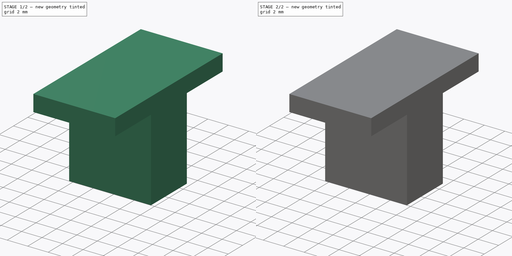
[diagram: build sequence overview — one tinted view per stage of 2, left to right]
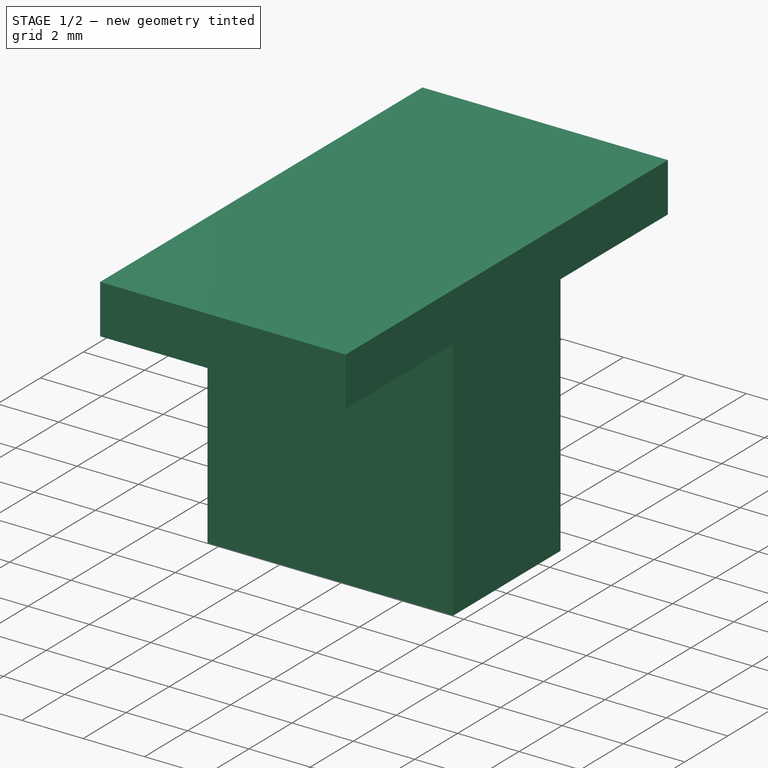
[diagram: stage 1 of 2 — iso view after this stage's code; geometry added in this stage tinted green]
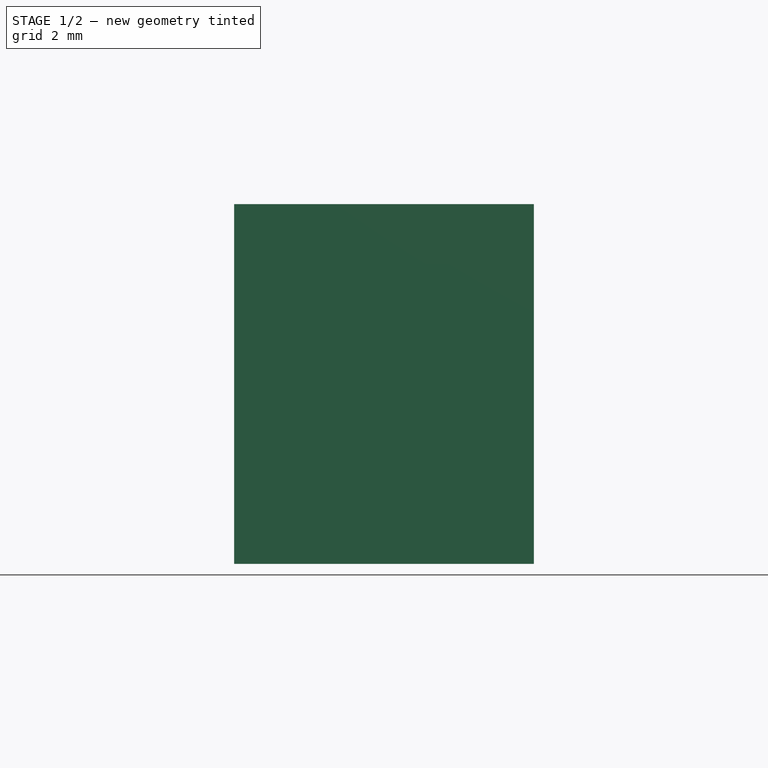
[diagram: stage 1 of 2 — front view after this stage's code; geometry added in this stage tinted green]
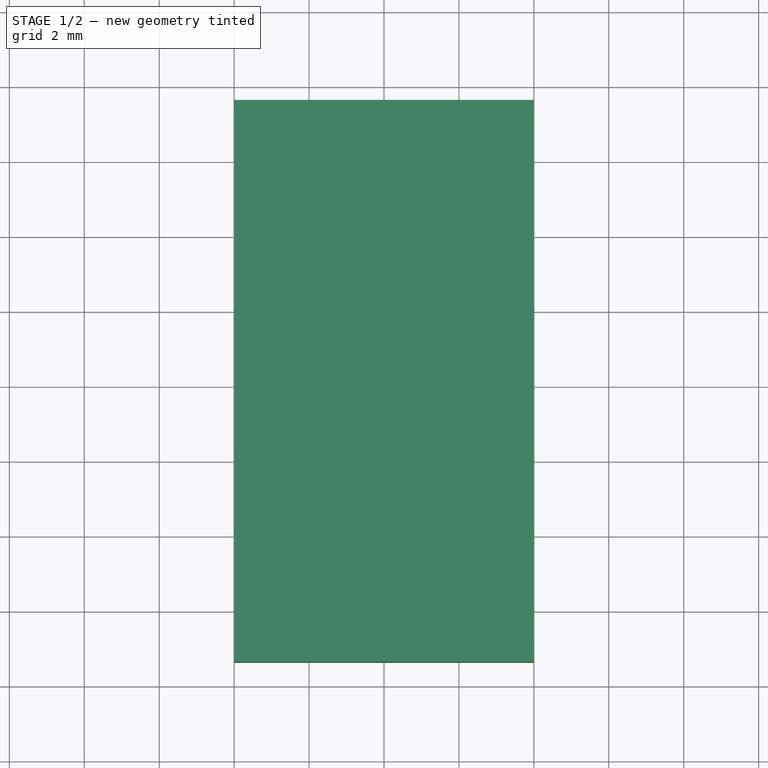
[diagram: stage 1 of 2 — top view after this stage's code; geometry added in this stage tinted green]
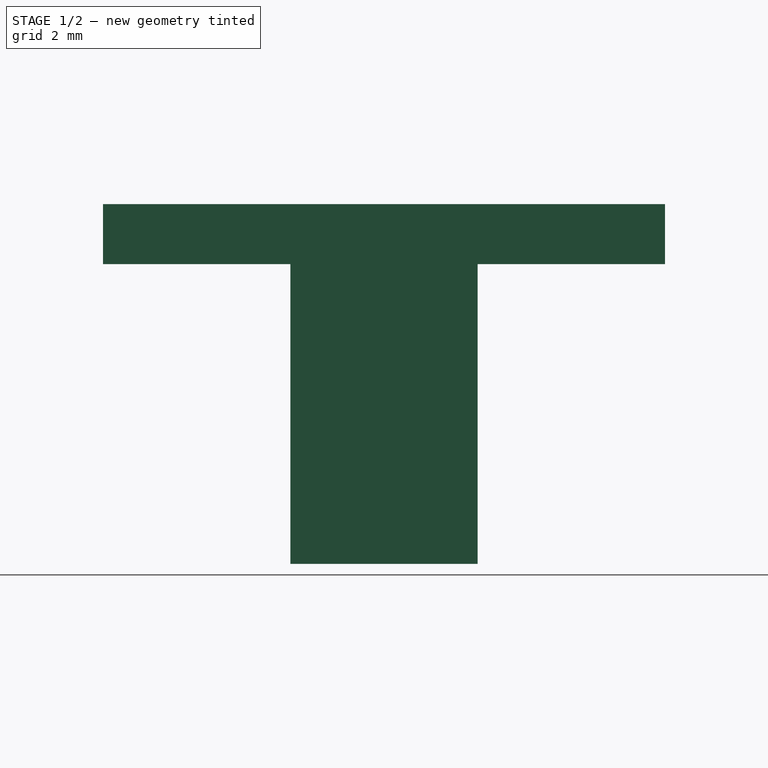
[diagram: stage 1 of 2 — right view after this stage's code; geometry added in this stage tinted green]
FCSTD DOCUMENT  (FreeCAD 0.16R6706 (Git))
Label: Prise-ISP-6
License: All rights reserved
LicenseURL: http://en.wikipedia.org/wiki/All_rights_reserved
objects: Sketcher::SketchObject×3, PartDesign::Pad×2, PartDesign::Pocket×1, Part::Fuse×1
note: 10 computed .brp shape members not serialized (recipe doc carries the construction recipe); baked Part::Feature solids carry a one-line shape summary decoded from their .brp

FEATURE [Sketcher::SketchObject] Sketch
  Placement = pos=(0,0,0) rot=(0.57735,0.57735,0.57735;2.0944rad)
  sketch-geometry (4):
    g0: LineSegment StartX=-2.5 StartY=0 StartZ=0 EndX=2.5 EndY=0 EndZ=0
    g1: LineSegment StartX=2.5 StartY=0 StartZ=0 EndX=2.5 EndY=-8 EndZ=0
    g2: LineSegment StartX=2.5 StartY=-8 StartZ=0 EndX=-2.5 EndY=-8 EndZ=0
    g3: LineSegment StartX=-2.5 StartY=-8 StartZ=0 EndX=-2.5 EndY=0 EndZ=0
  constraints (12):
    c: Coincident(g0,g1)
    c: Coincident(g1,g2)
    c: Coincident(g2,g3)
    c: Coincident(g3,g0)
    c: Horizontal(g0)
    c: Horizontal(g2)
    c: Vertical(g1)
    c: Vertical(g3)
    c: DistanceX(g2,g2) = 5
    c: DistanceY(g1,g1) = 8
    c: PointOnObject(g0,g-1)
    c: DistanceX(g0) = 2.5
FEATURE [PartDesign::Pad] Pad
  Length = 8
  Length2 = 100
  Midplane = true
  Placement = pos=(0,0,0) rot=(0.57735,0.57735,0.57735;2.0944rad)
  Sketch = -> Sketch
  Type = 0
FEATURE [Sketcher::SketchObject] Sketch002
  Placement = pos=(0,0,0) rot=(0.57735,0.57735,0.57735;2.0944rad)
  sketch-geometry (4):
    g0: LineSegment StartX=-7.5 StartY=1.6 StartZ=0 EndX=7.5 EndY=1.6 EndZ=0
    g1: LineSegment StartX=7.5 StartY=1.6 StartZ=0 EndX=7.5 EndY=0 EndZ=0
    g2: LineSegment StartX=7.5 StartY=0 StartZ=0 EndX=-7.5 EndY=0 EndZ=0
    g3: LineSegment StartX=-7.5 StartY=0 StartZ=0 EndX=-7.5 EndY=1.6 EndZ=0
  constraints (12):
    c: Coincident(g0,g1)
    c: Coincident(g1,g2)
    c: Coincident(g2,g3)
    c: Coincident(g3,g0)
    c: Horizontal(g0)
    c: Horizontal(g2)
    c: Vertical(g1)
    c: Vertical(g3)
    c: DistanceX(g0,g0) = 15
    c: DistanceY(g1,g1) = 1.6
    c: PointOnObject(g1,g-1)
    c: DistanceX(g0) = 7.5
FEATURE [PartDesign::Pad] Pad001
  Length = 8
  Length2 = 100
  Midplane = true
  Placement = pos=(0,0,0) rot=(0.57735,0.57735,0.57735;2.0944rad)
  Sketch = -> Sketch002
  Type = 0
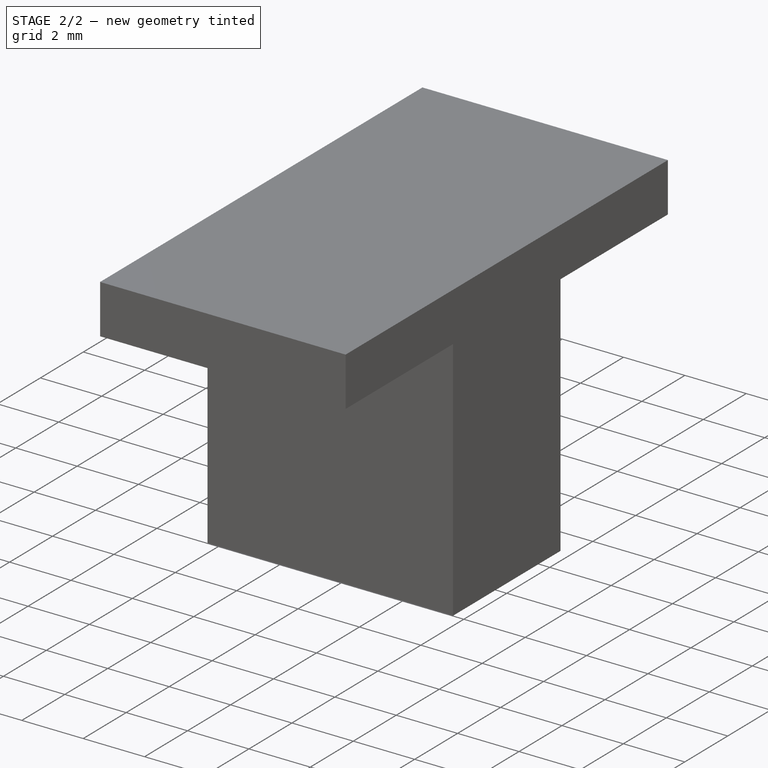
[diagram: stage 2 of 2 — iso view after this stage's code; geometry added in this stage tinted green]
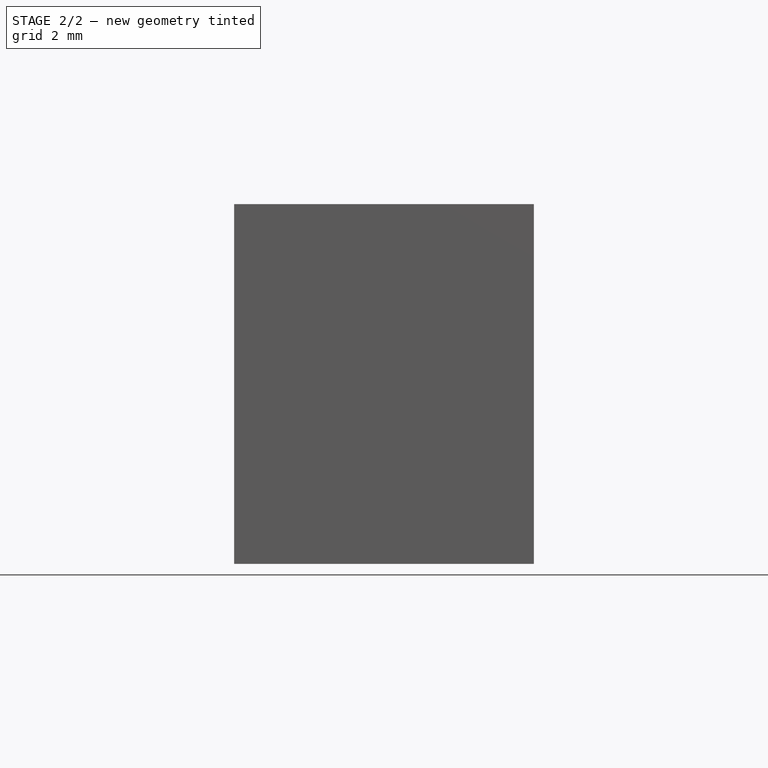
[diagram: stage 2 of 2 — front view after this stage's code; geometry added in this stage tinted green]
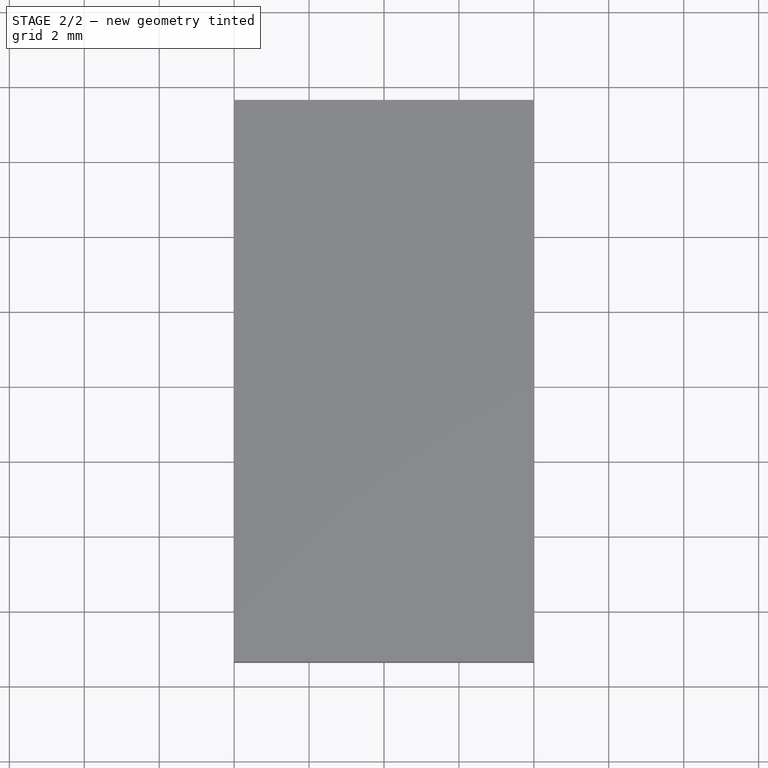
[diagram: stage 2 of 2 — top view after this stage's code; geometry added in this stage tinted green]
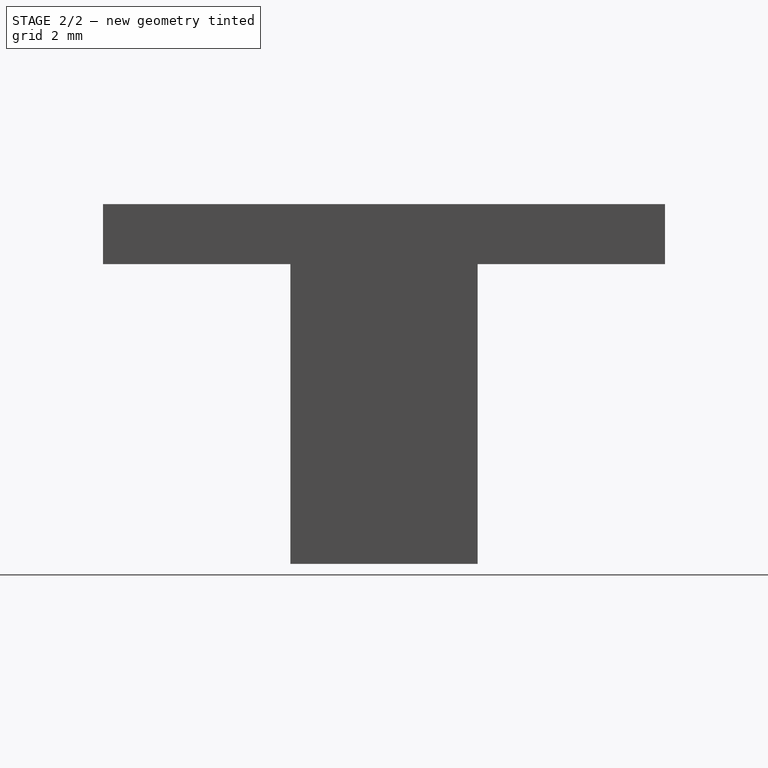
[diagram: stage 2 of 2 — right view after this stage's code; geometry added in this stage tinted green]
FEATURE [Sketcher::SketchObject] Sketch001
  Placement = pos=(0,0,-8) rot=(0.707107,0.707107,0;3.14159rad)
  Support = -> Pad [Face3]
  sketch-geometry (34):
    g0: LineSegment StartX=-1.77 StartY=3.04 StartZ=0 EndX=-0.77 EndY=3.04 EndZ=0
    g1: LineSegment StartX=-0.77 StartY=3.04 StartZ=0 EndX=-0.77 EndY=2.04 EndZ=0
    g2: LineSegment StartX=-0.77 StartY=2.04 StartZ=0 EndX=-1.77 EndY=2.04 EndZ=0
    g3: LineSegment StartX=-1.77 StartY=2.04 StartZ=0 EndX=-1.77 EndY=3.04 EndZ=0
    g4: LineSegment StartX=0.77 StartY=3.04 StartZ=0 EndX=1.77 EndY=3.04 EndZ=0
    g5: LineSegment StartX=1.77 StartY=3.04 StartZ=0 EndX=1.77 EndY=2.04 EndZ=0
    g6: LineSegment StartX=1.77 StartY=2.04 StartZ=0 EndX=0.77 EndY=2.04 EndZ=0
    g7: LineSegment StartX=0.77 StartY=2.04 StartZ=0 EndX=0.77 EndY=3.04 EndZ=0
    g8: LineSegment StartX=-1.77 StartY=0.5 StartZ=0 EndX=-0.77 EndY=0.5 EndZ=0
    g9: LineSegment StartX=-0.77 StartY=0.5 StartZ=0 EndX=-0.77 EndY=-0.5 EndZ=0
    g10: LineSegment StartX=-0.77 StartY=-0.5 StartZ=0 EndX=-1.77 EndY=-0.5 EndZ=0
    g11: LineSegment StartX=-1.77 StartY=-0.5 StartZ=0 EndX=-1.77 EndY=0.5 EndZ=0
    g12: LineSegment StartX=0.77 StartY=0.5 StartZ=0 EndX=1.77 EndY=0.5 EndZ=0
    g13: LineSegment StartX=1.77 StartY=0.5 StartZ=0 EndX=1.77 EndY=-0.5 EndZ=0
    g14: LineSegment StartX=1.77 StartY=-0.5 StartZ=0 EndX=0.77 EndY=-0.5 EndZ=0
    g15: LineSegment StartX=0.77 StartY=-0.5 StartZ=0 EndX=0.77 EndY=0.5 EndZ=0
    g16: LineSegment StartX=-1.77 StartY=-2.04 StartZ=0 EndX=-0.77 EndY=-2.04 EndZ=0
    g17: LineSegment StartX=-0.77 StartY=-2.04 StartZ=0 EndX=-0.77 EndY=-3.04 EndZ=0
    g18: LineSegment StartX=-0.77 StartY=-3.04 StartZ=0 EndX=-1.77 EndY=-3.04 EndZ=0
    g19: LineSegment StartX=-1.77 StartY=-3.04 StartZ=0 EndX=-1.77 EndY=-2.04 EndZ=0
    g20: LineSegment StartX=0.77 StartY=-2.04 StartZ=0 EndX=1.77 EndY=-2.04 EndZ=0
    g21: LineSegment StartX=1.77 StartY=-2.04 StartZ=0 EndX=1.77 EndY=-3.04 EndZ=0
    g22: LineSegment StartX=1.77 StartY=-3.04 StartZ=0 EndX=0.77 EndY=-3.04 EndZ=0
    g23: LineSegment StartX=0.77 StartY=-3.04 StartZ=0 EndX=0.77 EndY=-2.04 EndZ=0
    g24: Circle [constr] CenterX=-1.27 CenterY=2.54 CenterZ=0 NormalX=0 NormalY=0 NormalZ=1 Radius=0.707107
    g25: Circle [constr] CenterX=1.27 CenterY=2.54 CenterZ=0 NormalX=0 NormalY=0 NormalZ=1 Radius=0.707107
    g26: Circle [constr] CenterX=1.27 CenterY=0 CenterZ=0 NormalX=0 NormalY=0 NormalZ=1 Radius=0.707107
    g27: Circle [constr] CenterX=-1.27 CenterY=0 CenterZ=0 NormalX=0 NormalY=0 NormalZ=1 Radius=0.707107
    g28: Circle [constr] CenterX=-1.27 CenterY=-2.54 CenterZ=0 NormalX=0 NormalY=0 NormalZ=1 Radius=0.707107
    g29: Circle [constr] CenterX=1.27 CenterY=-2.54 CenterZ=0 NormalX=0 NormalY=0 NormalZ=1 Radius=0.707107
    g30: LineSegment [constr] StartX=-1.27 StartY=2.54 StartZ=0 EndX=1.27 EndY=2.54 EndZ=0
    g31: LineSegment [constr] StartX=1.27 StartY=2.54 StartZ=0 EndX=1.27 EndY=-2.54 EndZ=0
    g32: LineSegment [constr] StartX=1.27 StartY=-2.54 StartZ=0 EndX=-1.27 EndY=-2.54 EndZ=0
    g33: LineSegment [constr] StartX=-1.27 StartY=-2.54 StartZ=0 EndX=-1.27 EndY=2.54 EndZ=0
  constraints (98):
    c: Coincident(g0,g1)
    c: Coincident(g1,g2)
    c: Coincident(g2,g3)
    c: Coincident(g3,g0)
    c: Horizontal(g0)
    c: Horizontal(g2)
    c: Vertical(g1)
    c: Vertical(g3)
    c: Coincident(g4,g5)
    c: Coincident(g5,g6)
    c: Coincident(g6,g7)
    c: Coincident(g7,g4)
    c: Horizontal(g4)
    c: Horizontal(g6)
    c: Vertical(g5)
    c: Vertical(g7)
    c: Coincident(g8,g9)
    c: Coincident(g9,g10)
    c: Coincident(g10,g11)
    c: Coincident(g11,g8)
    c: Horizontal(g8)
    c: Horizontal(g10)
    c: Vertical(g9)
    c: Vertical(g11)
    c: Coincident(g12,g13)
    c: Coincident(g13,g14)
    c: Coincident(g14,g15)
    c: Coincident(g15,g12)
    c: Horizontal(g12)
    c: Horizontal(g14)
    c: Vertical(g13)
    c: Vertical(g15)
    c: Coincident(g16,g17)
    c: Coincident(g17,g18)
    c: Coincident(g18,g19)
    c: Coincident(g19,g16)
    c: Horizontal(g16)
    c: Horizontal(g18)
    c: Vertical(g17)
    c: Vertical(g19)
    c: Coincident(g20,g21)
    c: Coincident(g21,g22)
    c: Coincident(g22,g23)
    c: Coincident(g23,g20)
    c: Horizontal(g20)
    c: Horizontal(g22)
    c: Vertical(g21)
    c: Vertical(g23)
    c: PointOnObject(g0,g24)
    c: PointOnObject(g0,g24)
    c: PointOnObject(g1,g24)
    c: PointOnObject(g4,g25)
    c: PointOnObject(g4,g25)
    c: PointOnObject(g5,g25)
    c: PointOnObject(g8,g27)
    c: PointOnObject(g8,g27)
    c: PointOnObject(g9,g27)
    c: PointOnObject(g12,g26)
    c: PointOnObject(g12,g26)
    c: PointOnObject(g13,g26)
    c: PointOnObject(g20,g29)
    c: PointOnObject(g20,g29)
    c: PointOnObject(g21,g29)
    c: PointOnObject(g17,g28)
    c: PointOnObject(g16,g28)
    c: PointOnObject(g16,g28)
    c: Equal(g16,g20)
    c: Equal(g20,g17)
    c: Equal(g17,g21)
    c: Equal(g21,g13)
    c: Equal(g13,g12)
    c: Equal(g12,g8)
    c: Equal(g8,g9)
    c: Equal(g9,g5)
    c: Equal(g5,g4)
    c: Equal(g4,g0)
    c: Equal(g0,g1)
    c: DistanceX(g0,g0) = 1
    c: PointOnObject(g27,g-1)
    c: PointOnObject(g26,g-1)
    c: Coincident(g30,g31)
    c: Coincident(g31,g32)
    c: Coincident(g32,g33)
    c: Coincident(g33,g30)
    c: Horizontal(g30)
    c: Horizontal(g32)
    c: Vertical(g31)
    c: Vertical(g33)
    c: Coincident(g30,g25)
    c: Coincident(g24,g30)
    c: PointOnObject(g27,g33)
    c: PointOnObject(g26,g31)
    c: Coincident(g31,g29)
    c: Coincident(g28,g32)
    c: DistanceX(g32,g32) = 2.54
    c: DistanceY(g26,g25) = 2.54
    c: DistanceY(g31,g31) = 5.08
    c: DistanceX(g29) = 1.27
FEATURE [PartDesign::Pocket] Pocket
  Length = 5
  Placement = pos=(0,0,0) rot=(0.57735,0.57735,0.57735;2.0944rad)
  Sketch = -> Sketch001
  Type = 0
FEATURE [Part::Fuse] Fusion
  Base = -> Pocket
  Tool = -> Pad001
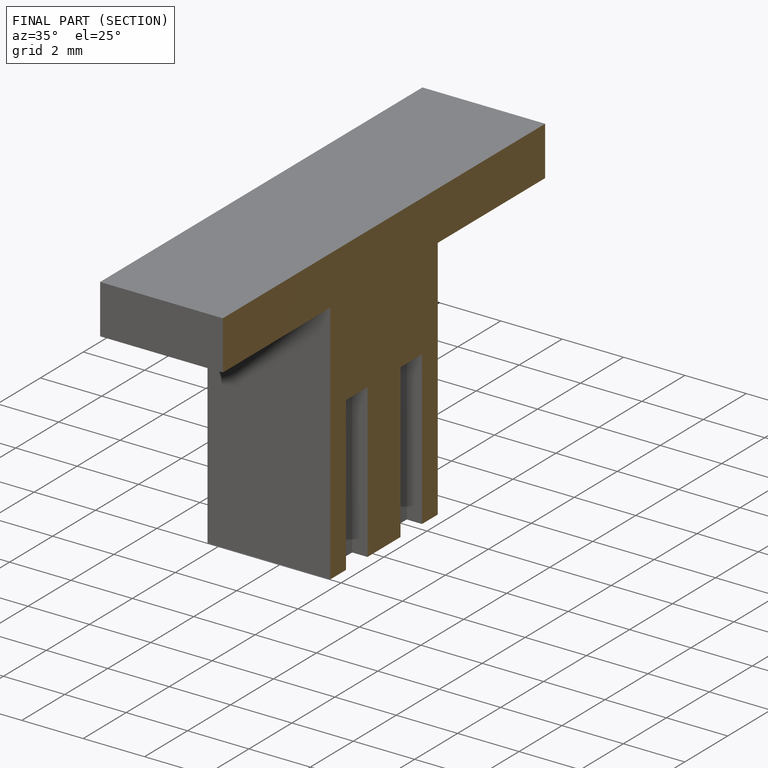
[diagram: finished part — half-section view (interior)]
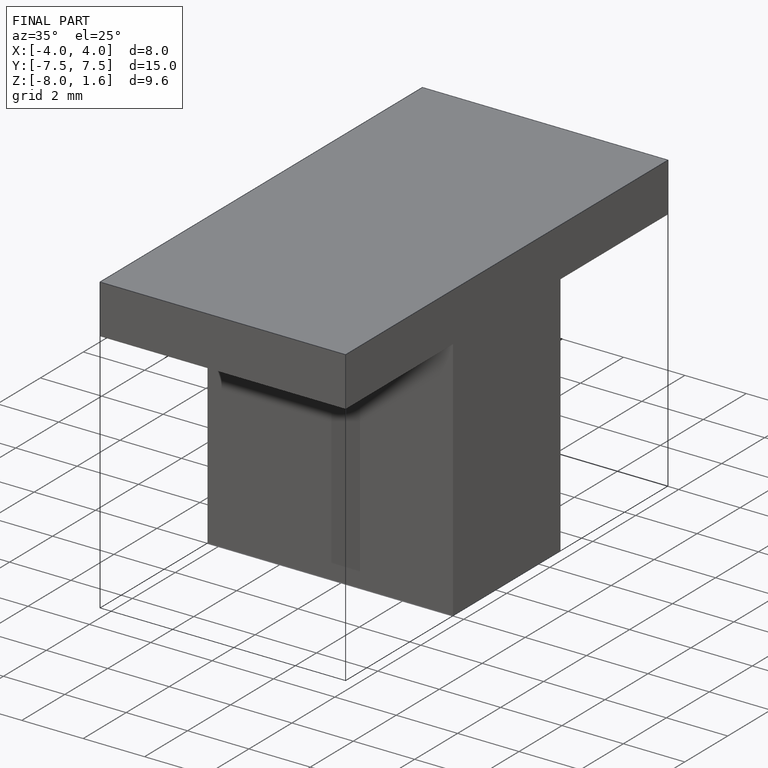
[diagram: finished part — iso view with bounding-box wireframe]
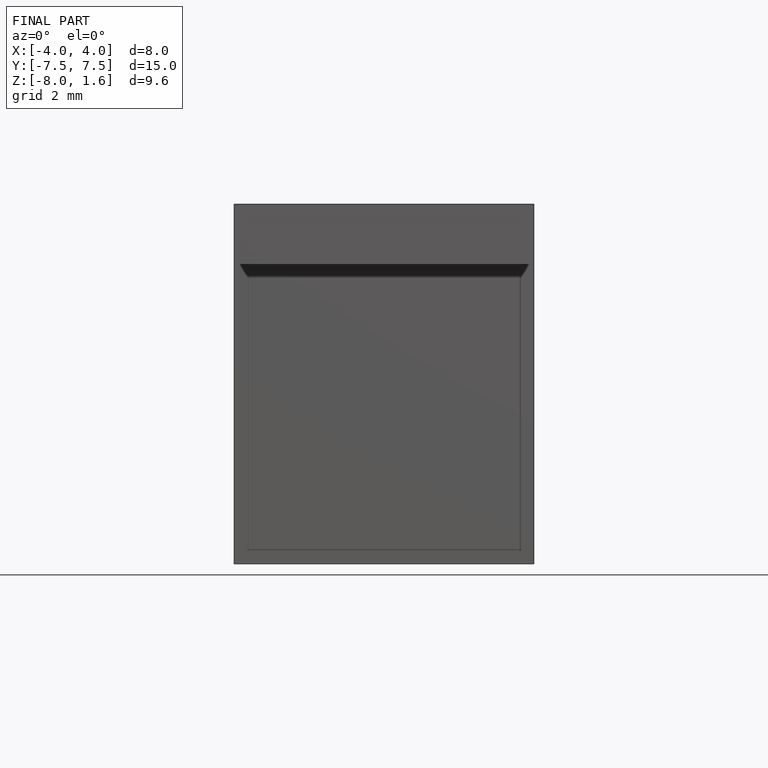
[diagram: finished part — front view with bounding-box wireframe]
